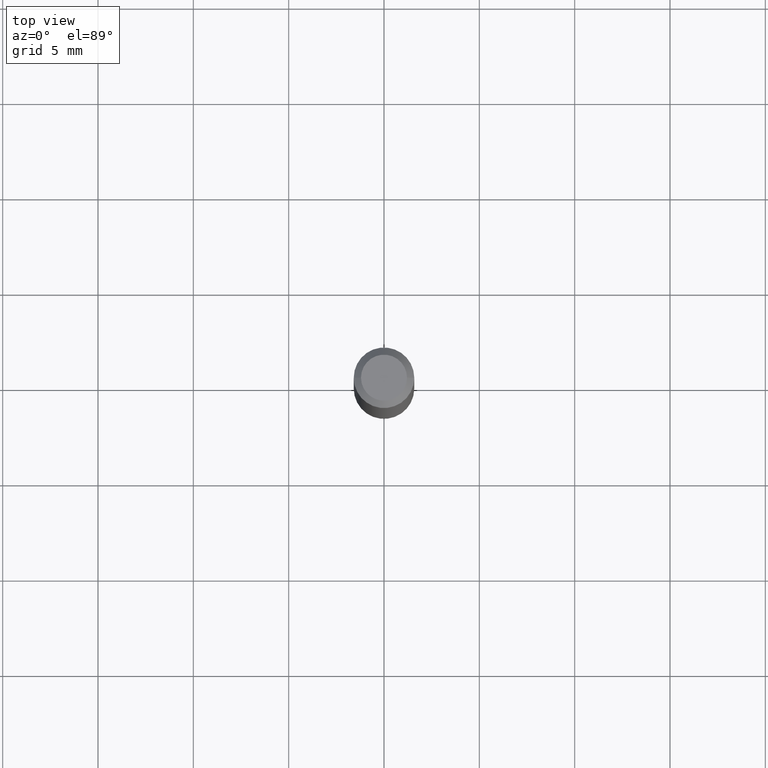
[diagram: clean part render]
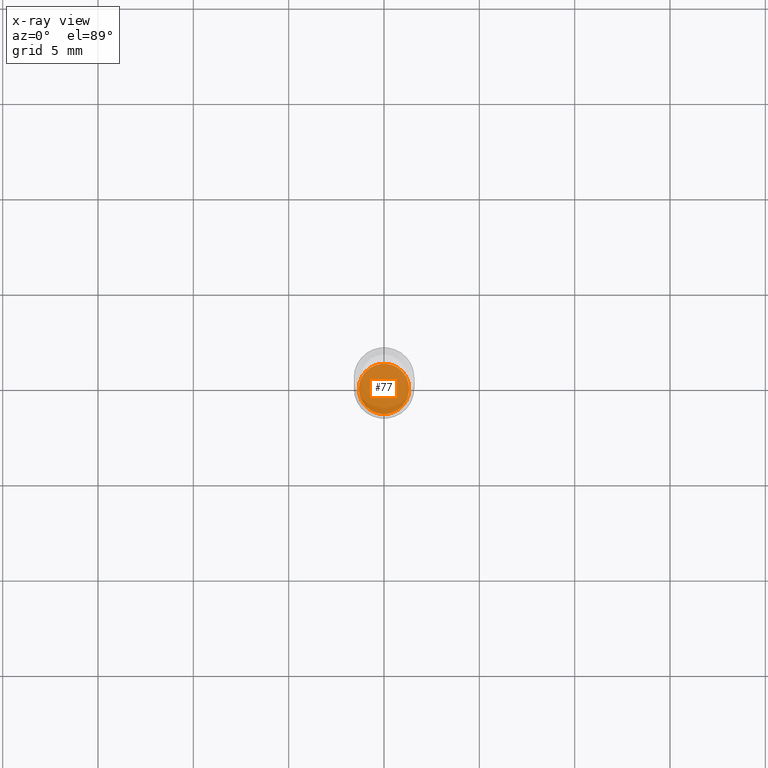
[diagram: x-ray — body ghosted, one internal face saturated and labeled with its STEP entity id]
A machine part, top view, then the same camera in x-ray: the body is ghosted and one INTERNAL B-rep face — a face not visible from any outside direction — is saturated and labeled: STEP entity #77.
In plain terms, the highlighted planar face has unit normal (-0, 0, 1).
Its self-contained STEP definition (entity closure, byte-faithful):
#5 = AXIS2_PLACEMENT_3D ( 'NONE', #125, #397, #447 ) ;
#8 = DIRECTION ( 'NONE',  ( -2.445468806185136597E-29, 3.491481338843145583E-15, 1.000000000000000000 ) ) ;
#52 = ORIENTED_EDGE ( 'NONE', *, *, #195, .F. ) ;
#66 = ORIENTED_EDGE ( 'NONE', *, *, #110, .F. ) ;
#70 = DIRECTION ( 'NONE',  ( -2.445468806185136597E-29, 3.491481338843145583E-15, 1.000000000000000000 ) ) ;
#77 = ADVANCED_FACE ( 'NONE', ( #276 ), #441, .F. ) ;
#83 = CARTESIAN_POINT ( 'NONE',  ( 3.281819137900453057E-29, -4.685567956727500961E-15, -1.342000000000000082 ) ) ;
#110 = EDGE_CURVE ( 'NONE', #161, #497, #385, .T. ) ;
#121 = DIRECTION ( 'NONE',  ( 1.000000000000000000, -6.982962677686269866E-15, 0.000000000000000000 ) ) ;
#125 = CARTESIAN_POINT ( 'NONE',  ( 3.281819137900453057E-29, -4.685567956727500961E-15, -1.342000000000000082 ) ) ;
#138 = EDGE_LOOP ( 'NONE', ( #52, #66 ) ) ;
#161 = VERTEX_POINT ( 'NONE', #260 ) ;
#162 = AXIS2_PLACEMENT_3D ( 'NONE', #83, #70, #194 ) ;
#194 = DIRECTION ( 'NONE',  ( 1.000000000000000000, -6.982962677686269866E-15, 0.000000000000000000 ) ) ;
#195 = EDGE_CURVE ( 'NONE', #497, #161, #208, .T. ) ;
#208 = CIRCLE ( 'NONE', #494, 0.05200000000000005312 ) ;
#260 = CARTESIAN_POINT ( 'NONE',  ( -0.05200000000000005312, -4.313436506958137335E-15, -1.342000000000000082 ) ) ;
#276 = FACE_OUTER_BOUND ( 'NONE', #138, .T. ) ;
#283 = CARTESIAN_POINT ( 'NONE',  ( 0.05200000000000005312, -5.048682015967187903E-15, -1.342000000000000082 ) ) ;
#385 = CIRCLE ( 'NONE', #162, 0.05200000000000005312 ) ;
#397 = DIRECTION ( 'NONE',  ( -2.438088387897960049E-29, 3.491481338843145188E-15, 1.000000000000000000 ) ) ;
#411 = CARTESIAN_POINT ( 'NONE',  ( 3.281819137900453057E-29, -4.685567956727500961E-15, -1.342000000000000082 ) ) ;
#441 = PLANE ( 'NONE',  #5 ) ;
#447 = DIRECTION ( 'NONE',  ( 1.000000000000000000, -6.982962677686265922E-15, 4.876176775795935793E-29 ) ) ;
#494 = AXIS2_PLACEMENT_3D ( 'NONE', #411, #8, #121 ) ;
#497 = VERTEX_POINT ( 'NONE', #283 ) ;